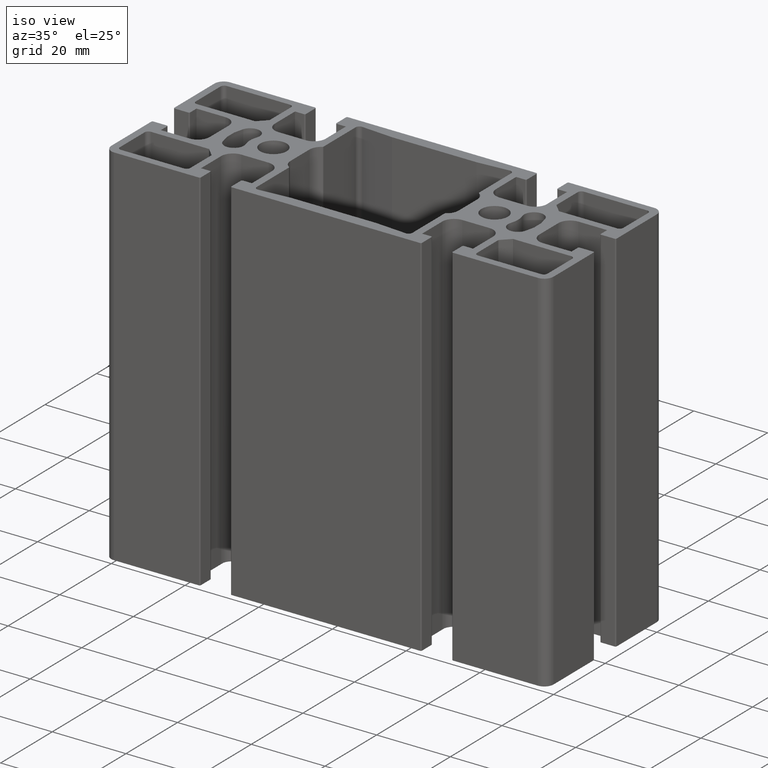
[diagram: clean part render]
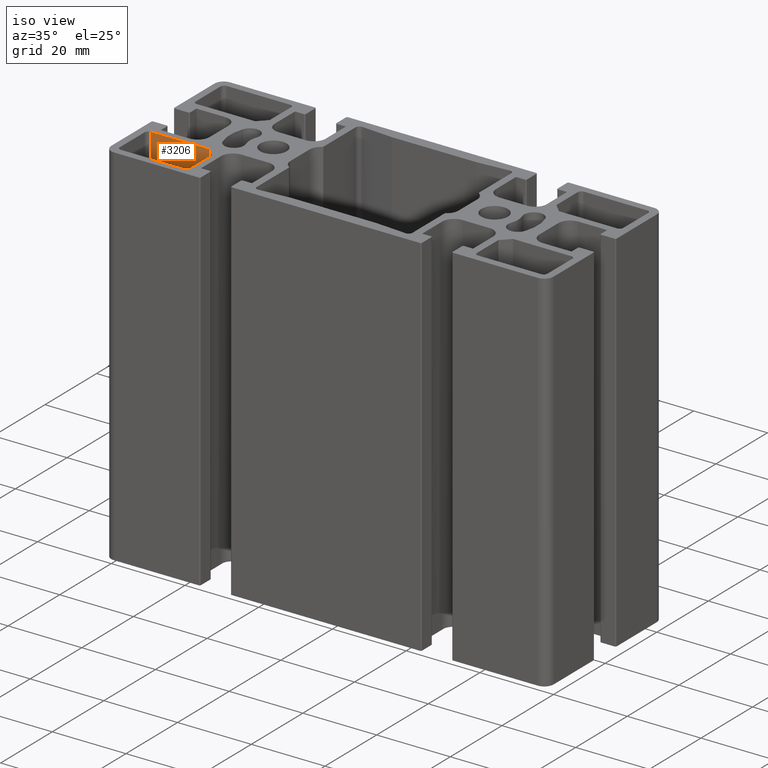
[diagram: same view with one face highlighted and labeled with its STEP entity id]
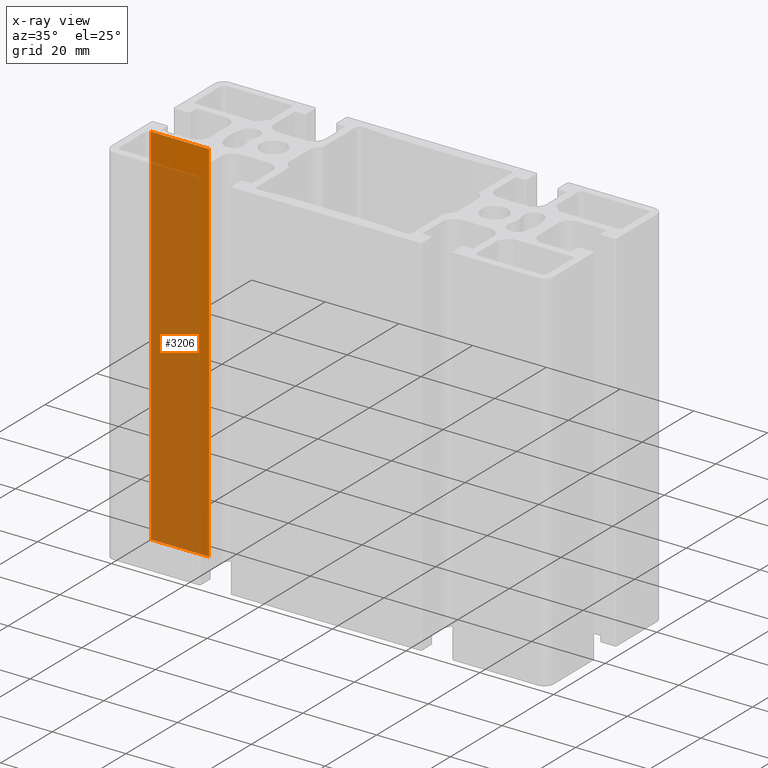
[diagram: x-ray of the same camera — body ghosted, the highlighted face saturated]
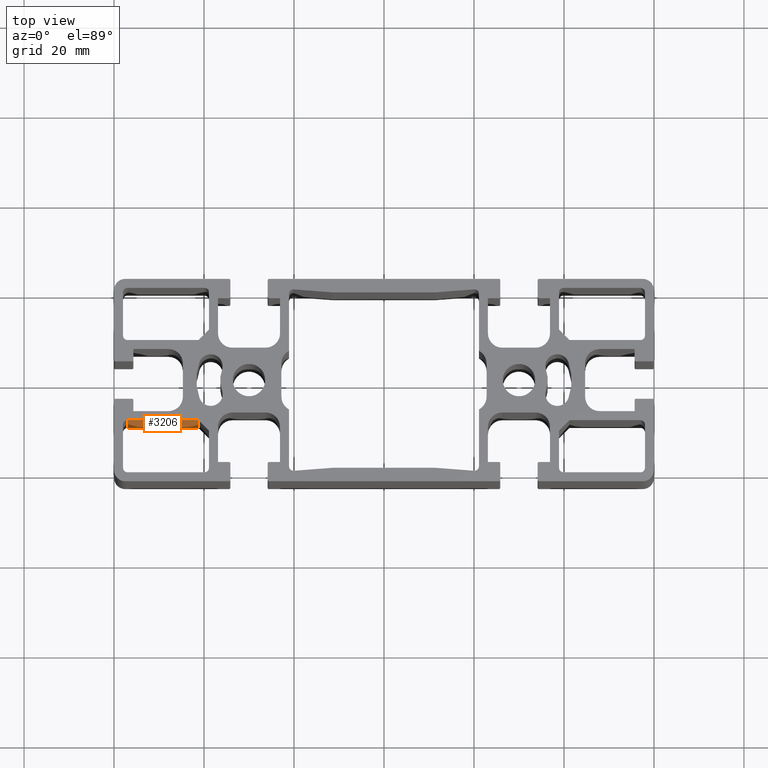
[diagram: same view with one face highlighted and labeled with its STEP entity id]
A machine part, iso view. The second image highlights one B-rep face of the part: STEP entity #3206.
The next image is the same camera in x-ray: the body ghosted, the highlighted face saturated — about 83% of this face is hidden behind the body in this view.
A second angle (top view) of the same face is appended — the face is thin or edge-on in the first view.
In plain terms, the highlighted planar face has unit normal (0, 1, 0).
Its self-contained STEP definition (entity closure, byte-faithful):
#400=FACE_OUTER_BOUND('',#562,.T.);
#562=EDGE_LOOP('',(#2601,#2602,#2603,#2604));
#876=LINE('',#5316,#1200);
#889=LINE('',#5351,#1213);
#891=LINE('',#5354,#1215);
#892=LINE('',#5355,#1216);
#1200=VECTOR('',#4360,100.);
#1213=VECTOR('',#4393,100.);
#1215=VECTOR('',#4397,15.7665476220844);
#1216=VECTOR('',#4398,15.7665476220844);
#1530=VERTEX_POINT('',#5310);
#1532=VERTEX_POINT('',#5314);
#1543=VERTEX_POINT('',#5348);
#1544=VERTEX_POINT('',#5350);
#1976=EDGE_CURVE('',#1532,#1530,#876,.T.);
#1993=EDGE_CURVE('',#1544,#1543,#889,.T.);
#1995=EDGE_CURVE('',#1530,#1543,#891,.T.);
#1996=EDGE_CURVE('',#1544,#1532,#892,.T.);
#2601=ORIENTED_EDGE('',*,*,#1995,.F.);
#2602=ORIENTED_EDGE('',*,*,#1976,.F.);
#2603=ORIENTED_EDGE('',*,*,#1996,.F.);
#2604=ORIENTED_EDGE('',*,*,#1993,.T.);
#3050=PLANE('',#3508);
#3206=ADVANCED_FACE('',(#400),#3050,.F.);
#3508=AXIS2_PLACEMENT_3D('',#5353,#4395,#4396);
#4360=DIRECTION('',(0.,0.,1.));
#4393=DIRECTION('',(0.,0.,1.));
#4395=DIRECTION('center_axis',(4.22498209970858E-16,1.,0.));
#4396=DIRECTION('ref_axis',(0.,0.,1.));
#4397=DIRECTION('',(1.,-4.22498209970858E-16,0.));
#4398=DIRECTION('',(-1.,4.22498209970858E-16,0.));
#5310=CARTESIAN_POINT('',(-56.99999999999,-8.89999999997757,100.));
#5314=CARTESIAN_POINT('',(-56.99999999999,-8.89999999997757,0.));
#5316=CARTESIAN_POINT('',(-56.99999999999,-8.89999999997757,0.));
#5348=CARTESIAN_POINT('',(-41.2334523779056,-8.89999999997758,100.));
#5350=CARTESIAN_POINT('',(-41.2334523779056,-8.89999999997758,0.));
#5351=CARTESIAN_POINT('',(-41.2334523779056,-8.89999999997758,0.));
#5353=CARTESIAN_POINT('Origin',(-56.99999999999,-8.89999999997757,0.));
#5354=CARTESIAN_POINT('',(-28.499999999995,-8.89999999997759,100.));
#5355=CARTESIAN_POINT('',(-28.499999999995,-8.89999999997759,0.));